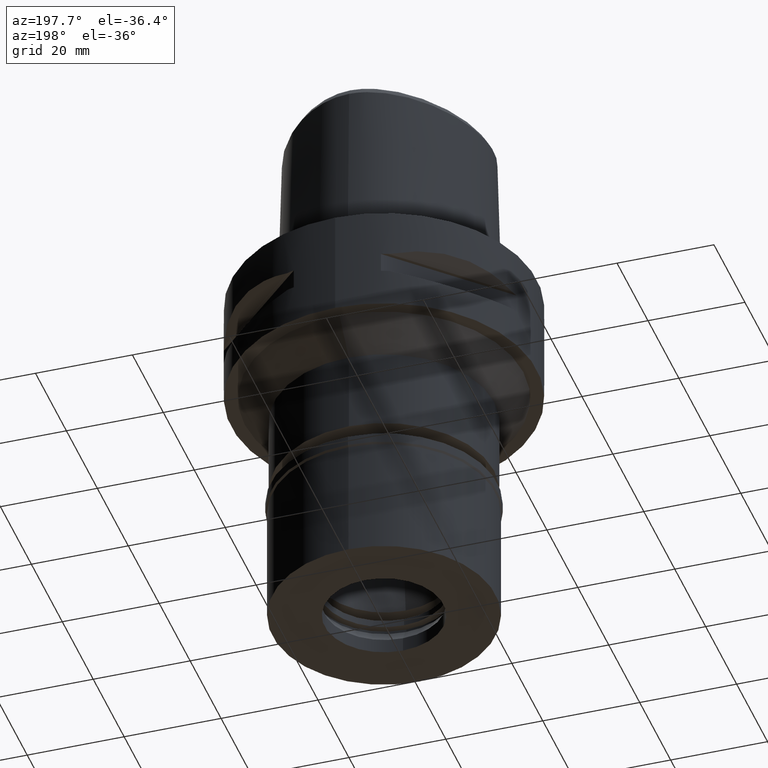
[diagram: clean part render]
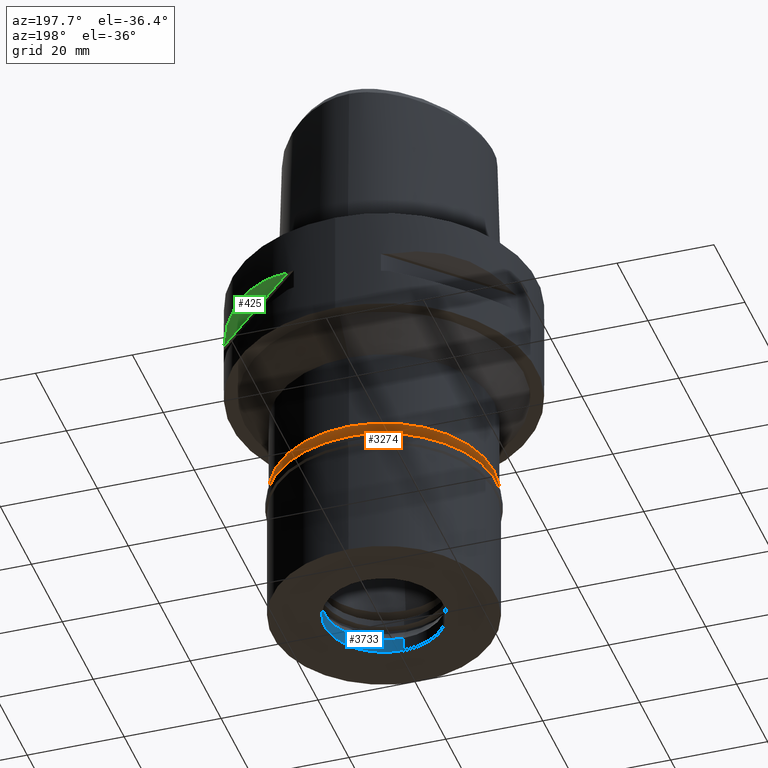
[diagram: same view with three faces highlighted in distinct colors, each labeled with its STEP entity id]
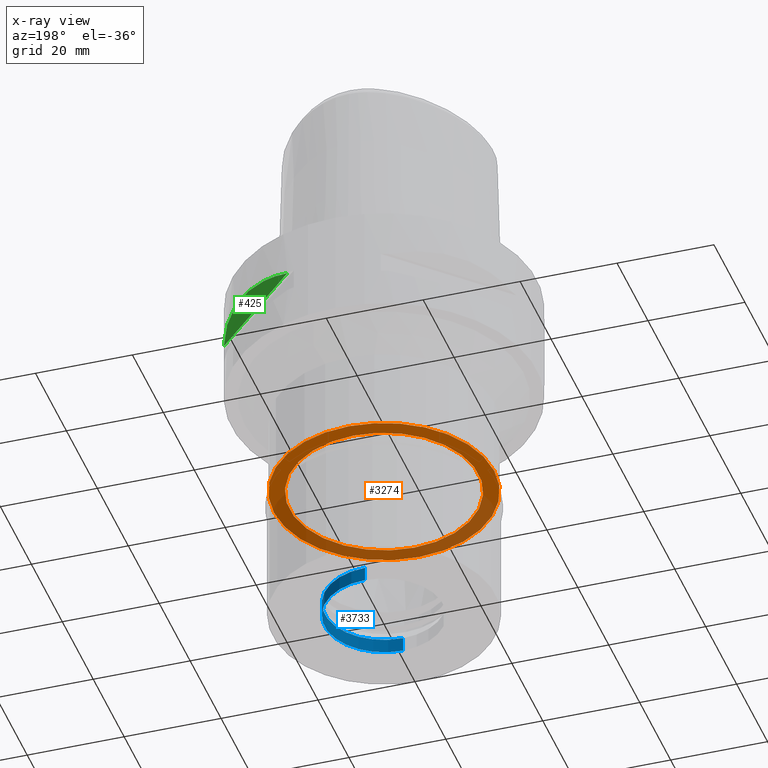
[diagram: x-ray of the same camera — body ghosted, the three highlighted faces saturated]
A machine part, auxiliary view with three faces highlighted in distinct colors.
The next image is the same camera in x-ray (body ghosted, the three faces saturated) — at least one of them is partly hidden behind the body in this view.
Their STEP definitions:

[orange] entity #3274 — the highlighted planar face has unit normal (0, 0, -1).
#3 = FACE_BOUND ( 'NONE', #1898, .T. ) ;
#56 = DIRECTION ( 'NONE',  ( 0.0000000000000000000, 1.000000000000000000, 0.0000000000000000000 ) ) ;
#307 = DIRECTION ( 'NONE',  ( 0.0000000000000000000, 0.0000000000000000000, -1.000000000000000000 ) ) ;
#417 = CIRCLE ( 'NONE', #3139, 22.75000000000000000 ) ;
#418 = FACE_OUTER_BOUND ( 'NONE', #3612, .T. ) ;
#488 = ORIENTED_EDGE ( 'NONE', *, *, #954, .F. ) ;
#511 = AXIS2_PLACEMENT_3D ( 'NONE', #1382, #307, #3670 ) ;
#544 = DIRECTION ( 'NONE',  ( 0.0000000000000000000, 1.000000000000000000, 0.0000000000000000000 ) ) ;
#696 = EDGE_CURVE ( 'NONE', #4739, #4171, #3516, .T. ) ;
#735 = DIRECTION ( 'NONE',  ( 0.0000000000000000000, 0.0000000000000000000, -1.000000000000000000 ) ) ;
#954 = EDGE_CURVE ( 'NONE', #1716, #3975, #4313, .T. ) ;
#1364 = CARTESIAN_POINT ( 'NONE',  ( 0.0000000000000000000, 0.0000000000000000000, -44.79999999999999716 ) ) ;
#1382 = CARTESIAN_POINT ( 'NONE',  ( 0.0000000000000000000, 0.0000000000000000000, -44.79999999999999716 ) ) ;
#1406 = EDGE_CURVE ( 'NONE', #4171, #4739, #417, .T. ) ;
#1540 = DIRECTION ( 'NONE',  ( 0.0000000000000000000, -1.000000000000000000, 0.0000000000000000000 ) ) ;
#1676 = CARTESIAN_POINT ( 'NONE',  ( 0.0000000000000000000, -19.50000000000000000, -44.79999999999999716 ) ) ;
#1697 = ORIENTED_EDGE ( 'NONE', *, *, #696, .F. ) ;
#1716 = VERTEX_POINT ( 'NONE', #3328 ) ;
#1896 = AXIS2_PLACEMENT_3D ( 'NONE', #1364, #3948, #3551 ) ;
#1898 = EDGE_LOOP ( 'NONE', ( #488, #2305 ) ) ;
#1899 = AXIS2_PLACEMENT_3D ( 'NONE', #1945, #3426, #544 ) ;
#1906 = CARTESIAN_POINT ( 'NONE',  ( 0.0000000000000000000, 0.0000000000000000000, -44.79999999999999716 ) ) ;
#1945 = CARTESIAN_POINT ( 'NONE',  ( 0.0000000000000000000, 0.0000000000000000000, -44.79999999999999716 ) ) ;
#2169 = ORIENTED_EDGE ( 'NONE', *, *, #1406, .F. ) ;
#2305 = ORIENTED_EDGE ( 'NONE', *, *, #4753, .F. ) ;
#2397 = CIRCLE ( 'NONE', #511, 19.50000000000000000 ) ;
#2668 = DIRECTION ( 'NONE',  ( 0.0000000000000000000, 0.0000000000000000000, 1.000000000000000000 ) ) ;
#3073 = CARTESIAN_POINT ( 'NONE',  ( 0.0000000000000000000, 0.0000000000000000000, -44.79999999999999716 ) ) ;
#3139 = AXIS2_PLACEMENT_3D ( 'NONE', #3073, #2668, #56 ) ;
#3236 = AXIS2_PLACEMENT_3D ( 'NONE', #1906, #735, #1540 ) ;
#3242 = CARTESIAN_POINT ( 'NONE',  ( 0.0000000000000000000, 22.75000000000000000, -44.79999999999999716 ) ) ;
#3274 = ADVANCED_FACE ( 'NONE', ( #418, #3 ), #3343, .T. ) ;
#3328 = CARTESIAN_POINT ( 'NONE',  ( 0.0000000000000000000, 19.50000000000000000, -44.79999999999999716 ) ) ;
#3343 = PLANE ( 'NONE',  #3236 ) ;
#3426 = DIRECTION ( 'NONE',  ( 0.0000000000000000000, 0.0000000000000000000, -1.000000000000000000 ) ) ;
#3516 = CIRCLE ( 'NONE', #1896, 22.75000000000000000 ) ;
#3551 = DIRECTION ( 'NONE',  ( 0.0000000000000000000, -1.000000000000000000, 0.0000000000000000000 ) ) ;
#3612 = EDGE_LOOP ( 'NONE', ( #2169, #1697 ) ) ;
#3670 = DIRECTION ( 'NONE',  ( 0.0000000000000000000, -1.000000000000000000, 0.0000000000000000000 ) ) ;
#3948 = DIRECTION ( 'NONE',  ( 0.0000000000000000000, 0.0000000000000000000, 1.000000000000000000 ) ) ;
#3975 = VERTEX_POINT ( 'NONE', #1676 ) ;
#4171 = VERTEX_POINT ( 'NONE', #3242 ) ;
#4313 = CIRCLE ( 'NONE', #1899, 19.50000000000000000 ) ;
#4338 = CARTESIAN_POINT ( 'NONE',  ( 0.0000000000000000000, -22.75000000000000000, -44.79999999999999716 ) ) ;
#4739 = VERTEX_POINT ( 'NONE', #4338 ) ;
#4753 = EDGE_CURVE ( 'NONE', #3975, #1716, #2397, .T. ) ;

[blue] entity #3733 — the highlighted cylindrical surface (partial cylindrical patch) has radius 12.25 mm, axis along (0, 0, -1).
#58 = DIRECTION ( 'NONE',  ( 0.0000000000000000000, -3.730349362741000050E-13, 1.000000000000000000 ) ) ;
#67 = CARTESIAN_POINT ( 'NONE',  ( 0.0000000000000000000, 12.25000000000000000, -24.19999999999999929 ) ) ;
#374 = DIRECTION ( 'NONE',  ( 0.0000000000000000000, -1.000000000000000000, 0.0000000000000000000 ) ) ;
#407 = EDGE_CURVE ( 'NONE', #720, #2058, #4788, .T. ) ;
#610 = DIRECTION ( 'NONE',  ( 0.0000000000000000000, 1.000000000000000000, 0.0000000000000000000 ) ) ;
#666 = AXIS2_PLACEMENT_3D ( 'NONE', #4600, #4179, #2746 ) ;
#720 = VERTEX_POINT ( 'NONE', #3597 ) ;
#734 = CIRCLE ( 'NONE', #3999, 12.25000000000000000 ) ;
#892 = LINE ( 'NONE', #3312, #3546 ) ;
#1040 = DIRECTION ( 'NONE',  ( 0.0000000000000000000, 3.730349362741000050E-13, 1.000000000000000000 ) ) ;
#1168 = CARTESIAN_POINT ( 'NONE',  ( 0.0000000000000000000, 0.0000000000000000000, -24.19999999999999929 ) ) ;
#1350 = EDGE_LOOP ( 'NONE', ( #3194, #3983, #3092, #3805 ) ) ;
#1454 = VERTEX_POINT ( 'NONE', #67 ) ;
#1542 = EDGE_CURVE ( 'NONE', #1674, #1454, #734, .T. ) ;
#1562 = EDGE_CURVE ( 'NONE', #2058, #1674, #1886, .T. ) ;
#1674 = VERTEX_POINT ( 'NONE', #2242 ) ;
#1886 = LINE ( 'NONE', #2629, #4401 ) ;
#2058 = VERTEX_POINT ( 'NONE', #2872 ) ;
#2242 = CARTESIAN_POINT ( 'NONE',  ( 0.0000000000000000000, -12.25000000000000000, -24.19999999999999929 ) ) ;
#2481 = DIRECTION ( 'NONE',  ( 0.0000000000000000000, 0.0000000000000000000, -1.000000000000000000 ) ) ;
#2629 = CARTESIAN_POINT ( 'NONE',  ( 0.0000000000000000000, -12.25000000000000000, -27.19999999999999929 ) ) ;
#2695 = DIRECTION ( 'NONE',  ( 0.0000000000000000000, 0.0000000000000000000, 1.000000000000000000 ) ) ;
#2746 = DIRECTION ( 'NONE',  ( 0.0000000000000000000, -1.000000000000000000, 0.0000000000000000000 ) ) ;
#2872 = CARTESIAN_POINT ( 'NONE',  ( 0.0000000000000000000, -12.25000000000000000, -27.19999999999999929 ) ) ;
#3092 = ORIENTED_EDGE ( 'NONE', *, *, #1542, .T. ) ;
#3109 = FACE_OUTER_BOUND ( 'NONE', #1350, .T. ) ;
#3194 = ORIENTED_EDGE ( 'NONE', *, *, #407, .T. ) ;
#3312 = CARTESIAN_POINT ( 'NONE',  ( 0.0000000000000000000, 12.25000000000000000, -27.19999999999999929 ) ) ;
#3546 = VECTOR ( 'NONE', #1040, 1000.000000000000000 ) ;
#3555 = CARTESIAN_POINT ( 'NONE',  ( 0.0000000000000000000, 0.0000000000000000000, -27.19999999999999929 ) ) ;
#3597 = CARTESIAN_POINT ( 'NONE',  ( 0.0000000000000000000, 12.25000000000000000, -27.19999999999999929 ) ) ;
#3733 = ADVANCED_FACE ( 'NONE', ( #3109 ), #4677, .F. ) ;
#3805 = ORIENTED_EDGE ( 'NONE', *, *, #4694, .F. ) ;
#3838 = AXIS2_PLACEMENT_3D ( 'NONE', #3555, #2481, #610 ) ;
#3983 = ORIENTED_EDGE ( 'NONE', *, *, #1562, .T. ) ;
#3999 = AXIS2_PLACEMENT_3D ( 'NONE', #1168, #2695, #374 ) ;
#4179 = DIRECTION ( 'NONE',  ( 0.0000000000000000000, 0.0000000000000000000, -1.000000000000000000 ) ) ;
#4401 = VECTOR ( 'NONE', #58, 1000.000000000000000 ) ;
#4600 = CARTESIAN_POINT ( 'NONE',  ( 0.0000000000000000000, 0.0000000000000000000, 0.0000000000000000000 ) ) ;
#4677 = CYLINDRICAL_SURFACE ( 'NONE', #666, 12.25000000000000000 ) ;
#4694 = EDGE_CURVE ( 'NONE', #720, #1454, #892, .T. ) ;
#4788 = CIRCLE ( 'NONE', #3838, 12.25000000000000000 ) ;

[green] entity #425 — the highlighted planar face has unit normal (-0.3536, -0.3536, 0.866).
#179 = DIRECTION ( 'NONE',  ( -0.7071067811865474617, 0.7071067811865474617, 0.0000000000000000000 ) ) ;
#238 = DIRECTION ( 'NONE',  ( -0.3535533905933054277, -0.3535533905933054277, 0.8660254037844128394 ) ) ;
#256 = CARTESIAN_POINT ( 'NONE',  ( 10.44775724750000023, 29.71690375017999841, -9.950000000002001244 ) ) ;
#303 = ORIENTED_EDGE ( 'NONE', *, *, #4129, .F. ) ;
#366 = CARTESIAN_POINT ( 'NONE',  ( 20.64154884324738148, 23.90617837150510283, -8.160613588479780134 ) ) ;
#425 = ADVANCED_FACE ( 'NONE', ( #3952 ), #4746, .F. ) ;
#948 = EDGE_CURVE ( 'NONE', #4209, #3282, #3885, .T. ) ;
#1045 = CARTESIAN_POINT ( 'NONE',  ( 23.90617837150504599, 20.64154884324745609, -8.160627831300903523 ) ) ;
#1117 = CARTESIAN_POINT ( 'NONE',  ( 29.71690375017999841, 10.44775724750000023, -9.950000000002001244 ) ) ;
#1180 = AXIS2_PLACEMENT_3D ( 'NONE', #2105, #238, #3148 ) ;
#1441 = CARTESIAN_POINT ( 'NONE',  ( 29.71690375017999841, 10.44775724750000023, -9.950000000002001244 ) ) ;
#1857 = CARTESIAN_POINT ( 'NONE',  ( 18.81462633026355391, 25.37272068403001768, -8.309724968617137719 ) ) ;
#2105 = CARTESIAN_POINT ( 'NONE',  ( 10.60660171780000027, 35.35533905932999943, -7.583270440698999693 ) ) ;
#2151 = CARTESIAN_POINT ( 'NONE',  ( 28.92474506843117865, 12.70092055735358016, -9.353547358217941365 ) ) ;
#2878 = CARTESIAN_POINT ( 'NONE',  ( 14.84430321572445344, 27.88210502987327644, -8.906184731987689673 ) ) ;
#2929 = CARTESIAN_POINT ( 'NONE',  ( 25.37277178164058000, 18.81455742168906653, -8.309746333112723704 ) ) ;
#2987 = VECTOR ( 'NONE', #179, 1000.000000000000114 ) ;
#3148 = DIRECTION ( 'NONE',  ( -0.7071067811865475727, 0.7071067811865475727, 0.0000000000000000000 ) ) ;
#3282 = VERTEX_POINT ( 'NONE', #4823 ) ;
#3318 = CARTESIAN_POINT ( 'NONE',  ( 27.88214534467228489, 14.84422749205298331, -8.906206096483272106 ) ) ;
#3473 = B_SPLINE_CURVE_WITH_KNOTS ( 'NONE', 3,
 ( #1441, #2151, #3318, #2929, #1045, #366, #1857, #2878, #4834, #256 ),
 .UNSPECIFIED., .F., .F.,
 ( 4, 2, 2, 2, 4 ),
 ( 0.0000000000000000000, 0.2499999999999999445, 0.4999999999999998890, 0.7499999999999997780, 1.000000000000000000 ),
 .UNSPECIFIED. ) ;
#3885 = LINE ( 'NONE', #4182, #2987 ) ;
#3952 = FACE_OUTER_BOUND ( 'NONE', #4155, .T. ) ;
#4129 = EDGE_CURVE ( 'NONE', #4209, #3282, #3473, .T. ) ;
#4155 = EDGE_LOOP ( 'NONE', ( #4719, #303 ) ) ;
#4182 = CARTESIAN_POINT ( 'NONE',  ( 29.71690375017999841, 10.44775724750000023, -9.950000000000001066 ) ) ;
#4209 = VERTEX_POINT ( 'NONE', #1117 ) ;
#4719 = ORIENTED_EDGE ( 'NONE', *, *, #948, .T. ) ;
#4746 = PLANE ( 'NONE',  #1180 ) ;
#4823 = CARTESIAN_POINT ( 'NONE',  ( 10.44775724750000023, 29.71690375017999841, -9.950000000002001244 ) ) ;
#4834 = CARTESIAN_POINT ( 'NONE',  ( 12.70097436179019113, 28.92472615206971653, -9.353533115220882266 ) ) ;